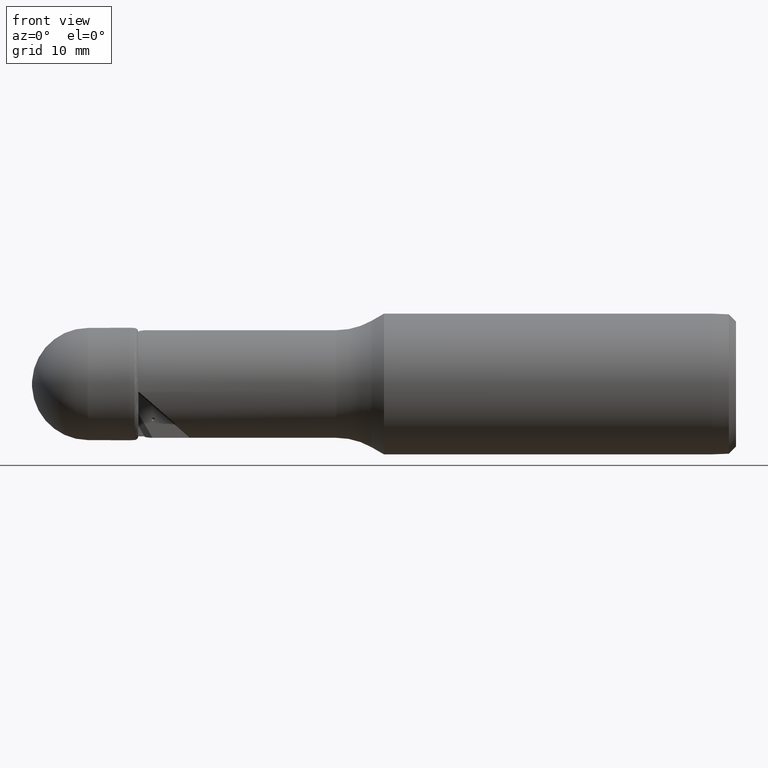
[diagram: clean part render]
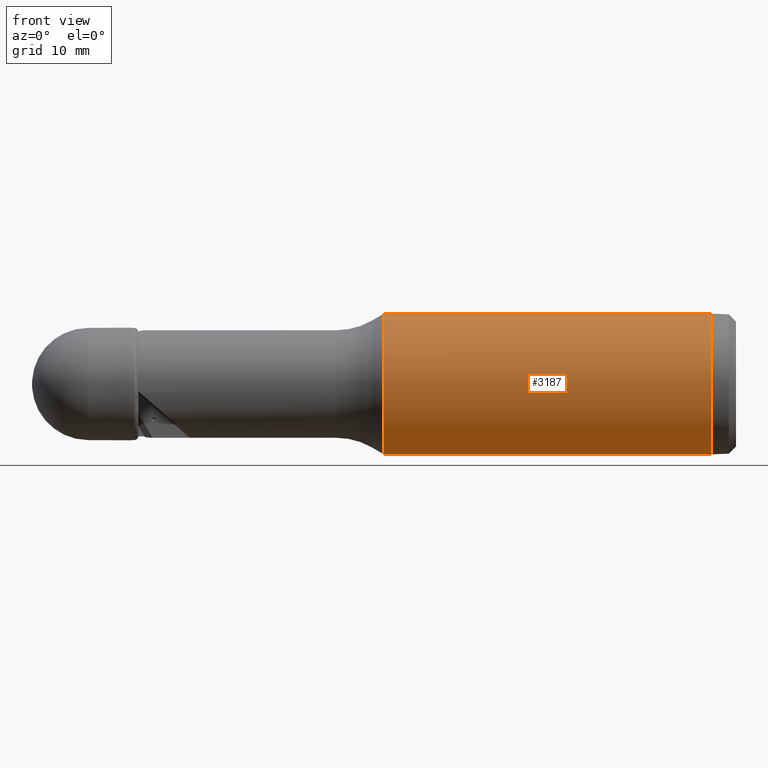
[diagram: same view with one face highlighted and labeled with its STEP entity id]
A machine part, front view. The second image highlights one B-rep face of the part: STEP entity #3187.
In plain terms, the highlighted cylindrical surface (partial cylindrical patch) has radius 10 mm, axis along (-1, 0, 0).
Its self-contained STEP definition (entity closure, byte-faithful):
#25 = LINE ( 'NONE', #790, #2797 ) ;
#89 = DIRECTION ( 'NONE',  ( -1.000000000000000000, 0.0000000000000000000, 0.0000000000000000000 ) ) ;
#282 = ORIENTED_EDGE ( 'NONE', *, *, #2704, .F. ) ;
#314 = EDGE_CURVE ( 'NONE', #1500, #661, #25, .T. ) ;
#411 = CARTESIAN_POINT ( 'NONE',  ( 50.31688218180731553, 1.224646799147353256E-15, -10.00000000000000000 ) ) ;
#513 = AXIS2_PLACEMENT_3D ( 'NONE', #3063, #534, #2297 ) ;
#534 = DIRECTION ( 'NONE',  ( -1.000000000000000000, 0.0000000000000000000, 0.0000000000000000000 ) ) ;
#624 = EDGE_LOOP ( 'NONE', ( #282, #677, #2091, #2412 ) ) ;
#661 = VERTEX_POINT ( 'NONE', #780 ) ;
#677 = ORIENTED_EDGE ( 'NONE', *, *, #1927, .T. ) ;
#780 = CARTESIAN_POINT ( 'NONE',  ( 50.31688218180731553, 0.0000000000000000000, 10.00000000000000000 ) ) ;
#781 = VERTEX_POINT ( 'NONE', #411 ) ;
#790 = CARTESIAN_POINT ( 'NONE',  ( -4.762142644779060241, 0.0000000000000000000, 10.00000000000000000 ) ) ;
#830 = CARTESIAN_POINT ( 'NONE',  ( -4.762142644779060241, 0.0000000000000000000, 0.0000000000000000000 ) ) ;
#860 = CYLINDRICAL_SURFACE ( 'NONE', #1447, 10.00000000000000000 ) ;
#1002 = DIRECTION ( 'NONE',  ( 0.0000000000000000000, 0.0000000000000000000, 1.000000000000000000 ) ) ;
#1188 = CIRCLE ( 'NONE', #1347, 10.00000000000000000 ) ;
#1216 = EDGE_CURVE ( 'NONE', #781, #661, #1929, .T. ) ;
#1347 = AXIS2_PLACEMENT_3D ( 'NONE', #1516, #1979, #1002 ) ;
#1447 = AXIS2_PLACEMENT_3D ( 'NONE', #830, #89, #2881 ) ;
#1500 = VERTEX_POINT ( 'NONE', #1502 ) ;
#1502 = CARTESIAN_POINT ( 'NONE',  ( 96.81688218180731553, 0.0000000000000000000, 10.00000000000000000 ) ) ;
#1516 = CARTESIAN_POINT ( 'NONE',  ( 96.81688218180731553, 0.0000000000000000000, 0.0000000000000000000 ) ) ;
#1785 = DIRECTION ( 'NONE',  ( -1.000000000000000000, 0.0000000000000000000, 0.0000000000000000000 ) ) ;
#1927 = EDGE_CURVE ( 'NONE', #2961, #1500, #1188, .T. ) ;
#1929 = CIRCLE ( 'NONE', #513, 10.00000000000000000 ) ;
#1979 = DIRECTION ( 'NONE',  ( -1.000000000000000000, 0.0000000000000000000, 0.0000000000000000000 ) ) ;
#2078 = FACE_OUTER_BOUND ( 'NONE', #624, .T. ) ;
#2091 = ORIENTED_EDGE ( 'NONE', *, *, #314, .T. ) ;
#2232 = CARTESIAN_POINT ( 'NONE',  ( -4.762142644779060241, 1.224646799147353256E-15, -10.00000000000000000 ) ) ;
#2297 = DIRECTION ( 'NONE',  ( 0.0000000000000000000, 0.0000000000000000000, 1.000000000000000000 ) ) ;
#2412 = ORIENTED_EDGE ( 'NONE', *, *, #1216, .F. ) ;
#2456 = CARTESIAN_POINT ( 'NONE',  ( 96.81688218180731553, 1.224646799147353256E-15, -10.00000000000000000 ) ) ;
#2508 = LINE ( 'NONE', #2232, #2929 ) ;
#2704 = EDGE_CURVE ( 'NONE', #2961, #781, #2508, .T. ) ;
#2797 = VECTOR ( 'NONE', #1785, 1000.000000000000000 ) ;
#2881 = DIRECTION ( 'NONE',  ( 0.0000000000000000000, 0.0000000000000000000, 1.000000000000000000 ) ) ;
#2929 = VECTOR ( 'NONE', #3244, 1000.000000000000000 ) ;
#2961 = VERTEX_POINT ( 'NONE', #2456 ) ;
#3063 = CARTESIAN_POINT ( 'NONE',  ( 50.31688218180731553, 0.0000000000000000000, 5.421010862427522170E-17 ) ) ;
#3187 = ADVANCED_FACE ( 'NONE', ( #2078 ), #860, .T. ) ;
#3244 = DIRECTION ( 'NONE',  ( -1.000000000000000000, 0.0000000000000000000, 0.0000000000000000000 ) ) ;